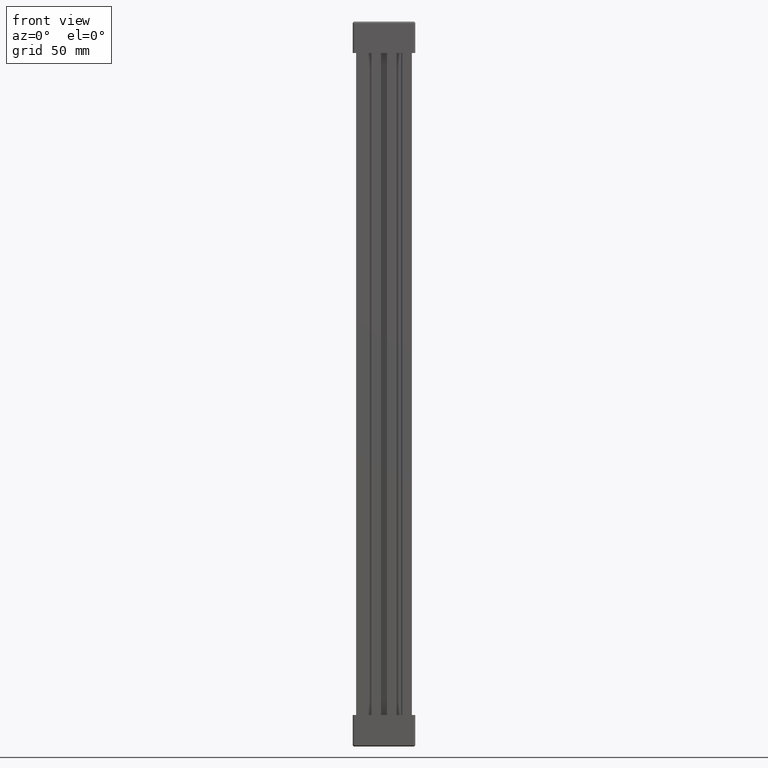
[diagram: clean part render]
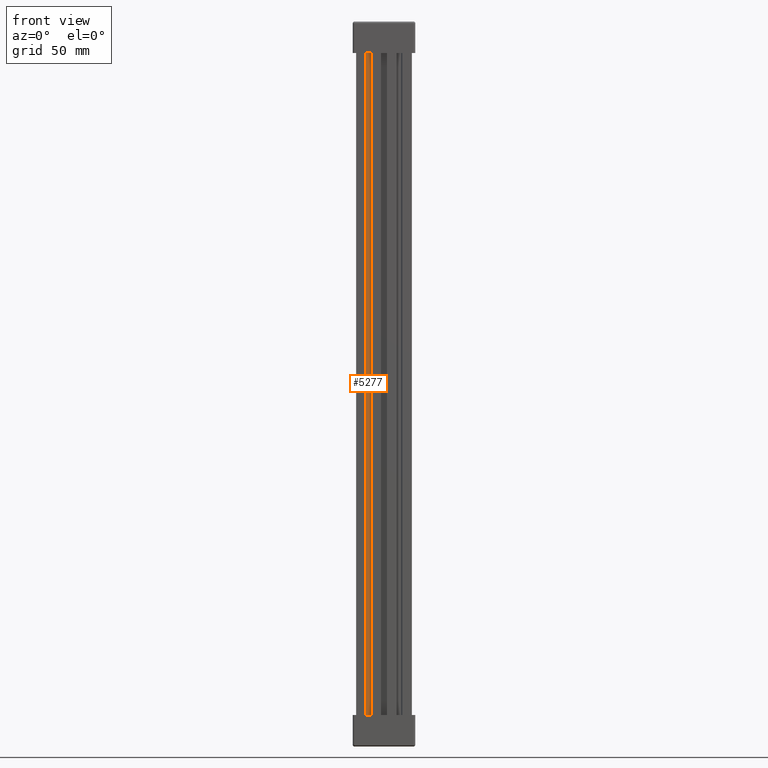
[diagram: same view with one face highlighted and labeled with its STEP entity id]
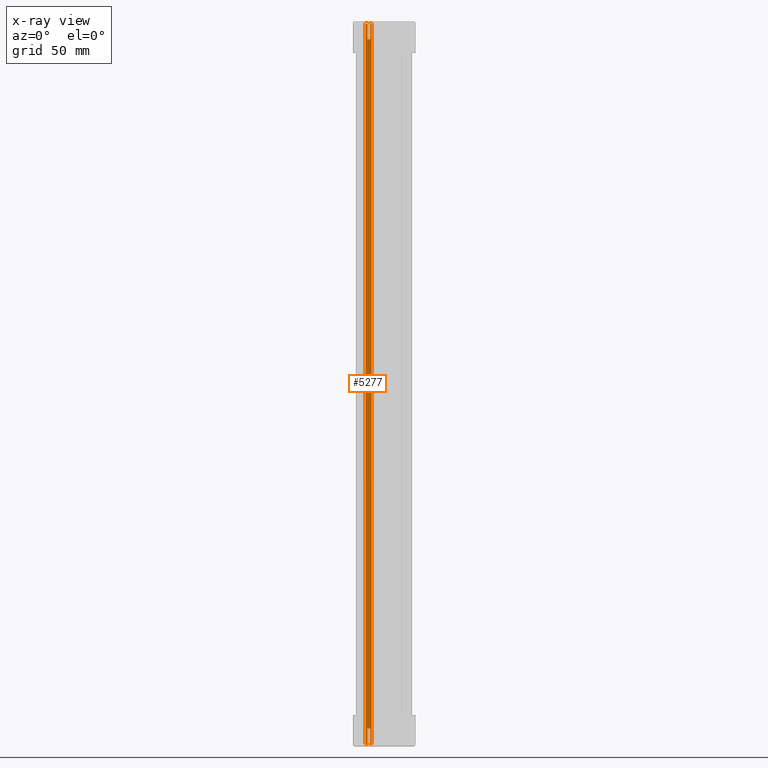
[diagram: x-ray of the same camera — body ghosted, the highlighted face saturated]
A machine part, front view. The second image highlights one B-rep face of the part: STEP entity #5277.
The next image is the same camera in x-ray: the body ghosted, the highlighted face saturated — about 0% of this face is hidden behind the body in this view.
In plain terms, the highlighted planar face has unit normal (0, 1, 0).
Its self-contained STEP definition (entity closure, byte-faithful):
#5277 = ADVANCED_FACE ( 'NONE', ( #18198 ), #18168, .F. ) ;
#5745 = EDGE_CURVE ( 'NONE', #30350, #30388, #9680, .T. ) ;
#5747 = EDGE_CURVE ( 'NONE', #30413, #30401, #9704, .T. ) ;
#5750 = EDGE_CURVE ( 'NONE', #30371, #30374, #9711, .T. ) ;
#5756 = EDGE_CURVE ( 'NONE', #30371, #30463, #9727, .T. ) ;
#5759 = EDGE_CURVE ( 'NONE', #30463, #30467, #9766, .T. ) ;
#5762 = EDGE_CURVE ( 'NONE', #30427, #30382, #9754, .T. ) ;
#5770 = EDGE_CURVE ( 'NONE', #30401, #30427, #9750, .T. ) ;
#5780 = EDGE_CURVE ( 'NONE', #30388, #30374, #9801, .T. ) ;
#5782 = EDGE_CURVE ( 'NONE', #30467, #30370, #9779, .T. ) ;
#5784 = EDGE_CURVE ( 'NONE', #30370, #30413, #9797, .T. ) ;
#5796 = EDGE_CURVE ( 'NONE', #30385, #30350, #9824, .T. ) ;
#5804 = EDGE_CURVE ( 'NONE', #30382, #30385, #9895, .T. ) ;
#9680 = LINE ( 'NONE', #9722, #33068 ) ;
#9693 = DIRECTION ( 'NONE',  ( 1.000000000000000000, 0.0000000000000000000, -0.0000000000000000000 ) ) ;
#9699 = DIRECTION ( 'NONE',  ( -0.0000000000000000000, 0.0000000000000000000, -1.000000000000000000 ) ) ;
#9702 = CARTESIAN_POINT ( 'NONE',  ( 11.74999999999998400, 4.500000000000003600, 304.0000000000000000 ) ) ;
#9704 = LINE ( 'NONE', #9702, #33138 ) ;
#9711 = LINE ( 'NONE', #9715, #33140 ) ;
#9715 = CARTESIAN_POINT ( 'NONE',  ( 3.999999999999892500, 4.500000000000000900, 306.0000000000000000 ) ) ;
#9718 = DIRECTION ( 'NONE',  ( -0.0000000000000000000, -0.0000000000000000000, -1.000000000000000000 ) ) ;
#9722 = CARTESIAN_POINT ( 'NONE',  ( 4.750474905724136200, 4.500000000000003600, 306.0000000000000000 ) ) ;
#9727 = LINE ( 'NONE', #9765, #33115 ) ;
#9737 = DIRECTION ( 'NONE',  ( -1.000000000000000000, -0.0000000000000000000, 0.0000000000000000000 ) ) ;
#9738 = DIRECTION ( 'NONE',  ( -0.0000000000000000000, 0.0000000000000000000, -1.000000000000000000 ) ) ;
#9742 = CARTESIAN_POINT ( 'NONE',  ( 4.750474905726194100, 4.500000000000003600, 304.0000000000000000 ) ) ;
#9747 = CARTESIAN_POINT ( 'NONE',  ( 11.74999999999998400, 4.500000000000003600, 2.053912595556539600E-012 ) ) ;
#9750 = LINE ( 'NONE', #9753, #33166 ) ;
#9753 = CARTESIAN_POINT ( 'NONE',  ( 6.500000000000061300, 4.500000000000003600, 306.0000000000000000 ) ) ;
#9754 = LINE ( 'NONE', #9747, #33126 ) ;
#9759 = DIRECTION ( 'NONE',  ( -0.0000000000000000000, 0.0000000000000000000, -1.000000000000000000 ) ) ;
#9762 = DIRECTION ( 'NONE',  ( 1.000000000000000000, 0.0000000000000000000, -0.0000000000000000000 ) ) ;
#9765 = CARTESIAN_POINT ( 'NONE',  ( 11.74999999999998400, 4.500000000000003600, 304.0000000000000000 ) ) ;
#9766 = LINE ( 'NONE', #9742, #33139 ) ;
#9779 = LINE ( 'NONE', #9790, #33169 ) ;
#9790 = CARTESIAN_POINT ( 'NONE',  ( 11.74999999999998400, 4.500000000000003600, 297.4999999999984700 ) ) ;
#9797 = LINE ( 'NONE', #9804, #33125 ) ;
#9801 = LINE ( 'NONE', #9823, #33153 ) ;
#9802 = DIRECTION ( 'NONE',  ( -1.000000000000000000, -0.0000000000000000000, 0.0000000000000000000 ) ) ;
#9804 = CARTESIAN_POINT ( 'NONE',  ( 6.054264213289481900, 4.500000000000003600, 304.0000000000000000 ) ) ;
#9807 = DIRECTION ( 'NONE',  ( 1.000000000000000000, 0.0000000000000000000, -0.0000000000000000000 ) ) ;
#9809 = DIRECTION ( 'NONE',  ( 0.0000000000000000000, -0.0000000000000000000, 1.000000000000000000 ) ) ;
#9823 = CARTESIAN_POINT ( 'NONE',  ( 11.74999999999998400, 4.500000000000003600, 1.498801083243961300E-012 ) ) ;
#9824 = LINE ( 'NONE', #9870, #33132 ) ;
#9835 = DIRECTION ( 'NONE',  ( -1.000000000000000000, -0.0000000000000000000, 0.0000000000000000000 ) ) ;
#9870 = CARTESIAN_POINT ( 'NONE',  ( 11.74999999999998400, 4.500000000000003600, 6.500000000001948700 ) ) ;
#9890 = DIRECTION ( 'NONE',  ( 0.0000000000000000000, -0.0000000000000000000, 1.000000000000000000 ) ) ;
#9895 = LINE ( 'NONE', #9901, #33196 ) ;
#9901 = CARTESIAN_POINT ( 'NONE',  ( 6.054264213291539000, 4.500000000000003600, 306.0000000000000000 ) ) ;
#18162 = DIRECTION ( 'NONE',  ( 0.0000000000000000000, 1.000000000000000000, 0.0000000000000000000 ) ) ;
#18168 = PLANE ( 'NONE',  #33747 ) ;
#18169 = CARTESIAN_POINT ( 'NONE',  ( 11.74999999999998400, 4.500000000000003600, 306.0000000000000000 ) ) ;
#18187 = DIRECTION ( 'NONE',  ( 0.0000000000000000000, -0.0000000000000000000, 1.000000000000000000 ) ) ;
#18198 = FACE_OUTER_BOUND ( 'NONE', #31060, .T. ) ;
#22668 = ORIENTED_EDGE ( 'NONE', *, *, #5782, .F. ) ;
#22673 = ORIENTED_EDGE ( 'NONE', *, *, #5759, .F. ) ;
#22682 = ORIENTED_EDGE ( 'NONE', *, *, #5756, .F. ) ;
#22683 = ORIENTED_EDGE ( 'NONE', *, *, #5762, .F. ) ;
#22684 = ORIENTED_EDGE ( 'NONE', *, *, #5780, .F. ) ;
#22693 = ORIENTED_EDGE ( 'NONE', *, *, #5784, .F. ) ;
#22701 = ORIENTED_EDGE ( 'NONE', *, *, #5796, .F. ) ;
#22744 = ORIENTED_EDGE ( 'NONE', *, *, #5745, .F. ) ;
#22753 = ORIENTED_EDGE ( 'NONE', *, *, #5770, .F. ) ;
#22758 = ORIENTED_EDGE ( 'NONE', *, *, #5804, .F. ) ;
#22770 = ORIENTED_EDGE ( 'NONE', *, *, #5750, .T. ) ;
#22785 = ORIENTED_EDGE ( 'NONE', *, *, #5747, .F. ) ;
#24709 = CARTESIAN_POINT ( 'NONE',  ( 4.750474905726193200, 4.500000000000003600, 303.9999999999997700 ) ) ;
#24732 = CARTESIAN_POINT ( 'NONE',  ( 4.750474905724995100, 4.500000000000004400, 297.4999999999985200 ) ) ;
#24747 = CARTESIAN_POINT ( 'NONE',  ( 6.500000000000061300, 4.500000000000003600, 2.055397518830398000E-012 ) ) ;
#25041 = CARTESIAN_POINT ( 'NONE',  ( 6.054264213291538100, 4.500000000000004400, 2.016905161402367800E-012 ) ) ;
#25048 = CARTESIAN_POINT ( 'NONE',  ( 4.750474905724136200, 4.500000000000004400, 6.500000000001803000 ) ) ;
#25061 = CARTESIAN_POINT ( 'NONE',  ( 6.054264213289481900, 4.500000000000004400, 297.4999999999981800 ) ) ;
#25067 = CARTESIAN_POINT ( 'NONE',  ( 6.500000000000061300, 4.500000000000003600, 303.9999999999989200 ) ) ;
#25069 = CARTESIAN_POINT ( 'NONE',  ( 3.999999999999892500, 4.499999999999869400, 1.347676599924535500E-012 ) ) ;
#25081 = CARTESIAN_POINT ( 'NONE',  ( 3.999999999999892500, 4.500000000000001800, 303.9999999999991500 ) ) ;
#25084 = CARTESIAN_POINT ( 'NONE',  ( 6.054264213290854200, 4.500000000000004400, 6.500000000001940700 ) ) ;
#25087 = CARTESIAN_POINT ( 'NONE',  ( 4.750474905724757900, 4.499999999999869400, 1.443289932012703500E-012 ) ) ;
#27223 = CARTESIAN_POINT ( 'NONE',  ( 6.054264213291281400, 4.500000000000003600, 303.9999999999990300 ) ) ;
#30350 = VERTEX_POINT ( 'NONE', #25048 ) ;
#30370 = VERTEX_POINT ( 'NONE', #25061 ) ;
#30371 = VERTEX_POINT ( 'NONE', #25081 ) ;
#30374 = VERTEX_POINT ( 'NONE', #25069 ) ;
#30382 = VERTEX_POINT ( 'NONE', #25041 ) ;
#30385 = VERTEX_POINT ( 'NONE', #25084 ) ;
#30388 = VERTEX_POINT ( 'NONE', #25087 ) ;
#30401 = VERTEX_POINT ( 'NONE', #25067 ) ;
#30413 = VERTEX_POINT ( 'NONE', #27223 ) ;
#30427 = VERTEX_POINT ( 'NONE', #24747 ) ;
#30463 = VERTEX_POINT ( 'NONE', #24709 ) ;
#30467 = VERTEX_POINT ( 'NONE', #24732 ) ;
#31060 = EDGE_LOOP ( 'NONE', ( #22770, #22684, #22744, #22701, #22758, #22683, #22753, #22785, #22693, #22668, #22673, #22682 ) ) ;
#33068 = VECTOR ( 'NONE', #9699, 1000.000000000000000 ) ;
#33115 = VECTOR ( 'NONE', #9762, 1000.000000000000000 ) ;
#33125 = VECTOR ( 'NONE', #9809, 1000.000000000000000 ) ;
#33126 = VECTOR ( 'NONE', #9737, 1000.000000000000000 ) ;
#33132 = VECTOR ( 'NONE', #9835, 1000.000000000000000 ) ;
#33138 = VECTOR ( 'NONE', #9693, 1000.000000000000000 ) ;
#33139 = VECTOR ( 'NONE', #9738, 1000.000000000000000 ) ;
#33140 = VECTOR ( 'NONE', #9718, 1000.000000000000000 ) ;
#33153 = VECTOR ( 'NONE', #9802, 1000.000000000000000 ) ;
#33166 = VECTOR ( 'NONE', #9759, 1000.000000000000000 ) ;
#33169 = VECTOR ( 'NONE', #9807, 1000.000000000000000 ) ;
#33196 = VECTOR ( 'NONE', #9890, 1000.000000000000000 ) ;
#33747 = AXIS2_PLACEMENT_3D ( 'NONE', #18169, #18162, #18187 ) ;